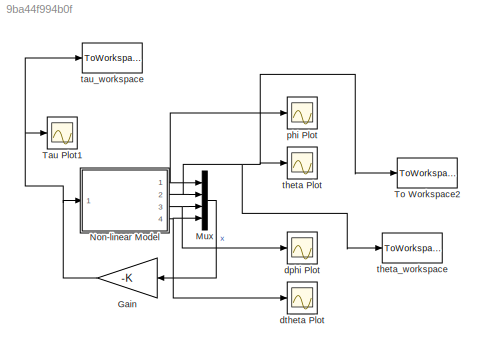
MODEL slx_9ba44f994b0f
KIND model
CONFIG AbsTol = auto
CONFIG EnableMultiTasking = off
CONFIG FixedStep = auto
CONFIG MaxStep = auto
CONFIG MinStep = auto
CONFIG RelTol = 1e-3
CONFIG SampleTimeConstraint = Unconstrained
CONFIG Solver = VariableStepAuto
CONFIG SolverName = VariableStepAuto
CONFIG StartTime = 0.0
CONFIG StopTime = 10
BLOCK [Gain] Gain
  Gain = -K
  Multiplication = Matrix(K*u)
  OutDataTypeStr = Inherit: Inherit via internal rule
  ParamDataTypeStr = Inherit: Inherit via internal rule
  SaturateOnIntegerOverflow = off
BLOCK [Mux] Mux
  DisplayOption = bar
  Ports = [4, 1]
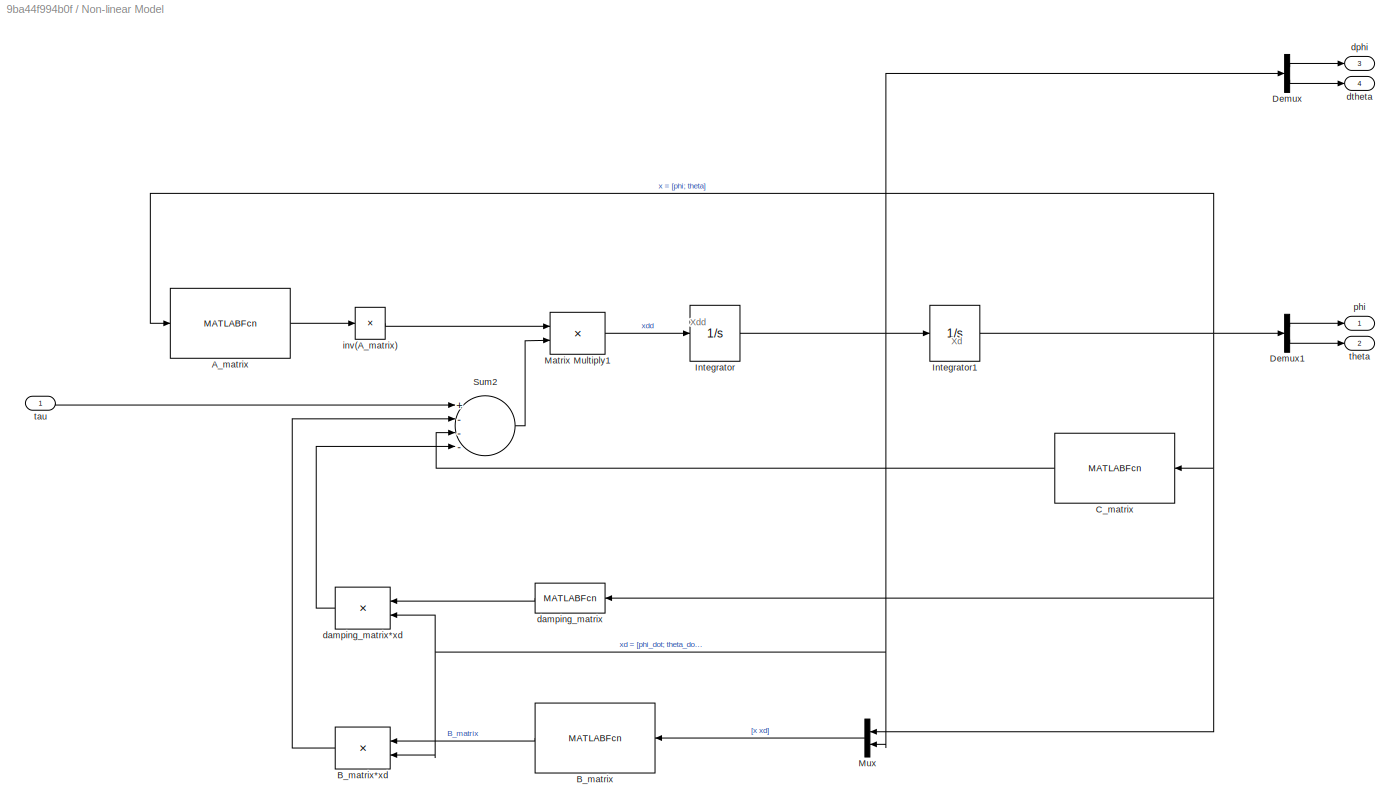
BLOCK [SubSystem] Non-linear Model
  Ports = [1, 4]
  RequestExecContextInheritance = off
BLOCK [MATLABFcn] Non-linear Model/A_matrix 
  Description = matrix A. 2x2
  MATLABFcn = A_matrix
  Output1D = off
  Ports = [1, 1]
BLOCK [MATLABFcn] Non-linear Model/B_matrix
  MATLABFcn = B_matrix
  Output1D = off
  Ports = [1, 1]
BLOCK [Product] Non-linear Model/B_matrix*xd
  InputSameDT = off
  Multiplication = Matrix(*)
  OutDataTypeStr = Inherit: Inherit via internal rule
  Ports = [2, 1]
  RndMeth = Floor
  SaturateOnIntegerOverflow = off
BLOCK [MATLABFcn] Non-linear Model/C_matrix
  MATLABFcn = C_matrix
  Output1D = off
  OutputDimensions = 2
  Ports = [1, 1]
BLOCK [Demux] Non-linear Model/Demux
  DisplayOption = bar
  Outputs = 2
  Ports = [1, 2]
BLOCK [Demux] Non-linear Model/Demux1
  DisplayOption = bar
  Outputs = 2
  Ports = [1, 2]
BLOCK [Integrator] Non-linear Model/Integrator
  InitialCondition = [0; 0.5]
  Ports = [1, 1]
BLOCK [Integrator] Non-linear Model/Integrator1
  InitialCondition = [0; 0.05]
  Ports = [1, 1]
BLOCK [Product] Non-linear Model/Matrix Multiply1
  InputSameDT = off
  Multiplication = Matrix(*)
  OutDataTypeStr = Inherit: Inherit via internal rule
  Ports = [2, 1]
  RndMeth = Floor
  SaturateOnIntegerOverflow = off
BLOCK [Mux] Non-linear Model/Mux
  DisplayOption = bar
  Inputs = 2
  Ports = [2, 1]
BLOCK [Sum] Non-linear Model/Sum2
  InputSameDT = off
  Inputs = +---
  OutDataTypeStr = Inherit: Inherit via internal rule
  Ports = [4, 1]
  SaturateOnIntegerOverflow = off
BLOCK [MATLABFcn] Non-linear Model/damping_matrix
  MATLABFcn = damping_matrix
  Output1D = off
  Ports = [1, 1]
BLOCK [Product] Non-linear Model/damping_matrix*xd 
  InputSameDT = off
  Multiplication = Matrix(*)
  OutDataTypeStr = Inherit: Inherit via internal rule
  Ports = [2, 1]
  RndMeth = Floor
  SaturateOnIntegerOverflow = off
BLOCK [Outport] Non-linear Model/dphi
  IconDisplay = Port number
  Port = 3
BLOCK [Outport] Non-linear Model/dtheta
  IconDisplay = Port number
  Port = 4
BLOCK [Product] Non-linear Model/inv(A_matrix)
  InputSameDT = off
  Inputs = /
  Multiplication = Matrix(*)
  OutDataTypeStr = Inherit: Inherit via internal rule
  Ports = [1, 1]
  RndMeth = Floor
  SaturateOnIntegerOverflow = off
BLOCK [Outport] Non-linear Model/phi
  IconDisplay = Port number
BLOCK [Inport] Non-linear Model/tau
  IconDisplay = Port number
BLOCK [Outport] Non-linear Model/theta
  IconDisplay = Port number
  Port = 2
BLOCK [Scope] Tau Plot1
  Floating = off
  NumInputPorts = 1
  Ports = [1]
  ScopeSpecificationString = Simulink.scopes.TimeScopeBlockCfg('CurrentConfiguration', extmgr.ConfigurationSet(extmgr.Configuration('Core','General UI',true),extmgr.Configuration('Core','Source UI',true),extmgr.Configuration('Sources','WiredSimulink',true,'DataLoggingVariableName','tau','DataLogging',true,'DataLoggingSaveFormat','Array'),extmgr.Configuration('Visuals','Time Domain',true,'SerializedDisplays',{struct('MinYLimRe...<+1503ch>
BLOCK [ToWorkspace] To Workspace2
  FixptAsFi = on
  MaxDataPoints = inf
  Ports = [1]
  SampleTime = -1
  SaveFormat = Timeseries
  VariableName = theta_fb
BLOCK [Scope] dphi Plot
  Floating = off
  NumInputPorts = 1
  Ports = [1]
  ScopeSpecificationString = Simulink.scopes.TimeScopeBlockCfg('CurrentConfiguration', extmgr.ConfigurationSet(extmgr.Configuration('Core','General UI',true),extmgr.Configuration('Core','Source UI',true),extmgr.Configuration('Sources','WiredSimulink',true,'DataLoggingVariableName','ScopeData2'),extmgr.Configuration('Visuals','Time Domain',true,'SerializedDisplays',{struct('MinYLimReal','-2.58294','MaxYLimReal','0.45593','YLab...<+1409ch>
BLOCK [Scope] dtheta Plot
  Floating = off
  NumInputPorts = 1
  Ports = [1]
  ScopeSpecificationString = Simulink.scopes.TimeScopeBlockCfg('CurrentConfiguration', extmgr.ConfigurationSet(extmgr.Configuration('Core','General UI',true),extmgr.Configuration('Core','Source UI',true),extmgr.Configuration('Sources','WiredSimulink',true,'DataLoggingVariableName','ScopeData3'),extmgr.Configuration('Visuals','Time Domain',true,'SerializedDisplays',{struct('MinYLimReal','-0.36947','MaxYLimReal','1.34185','YLab...<+1409ch>
BLOCK [Scope] phi Plot
  Floating = off
  NumInputPorts = 1
  Ports = [1]
  ScopeSpecificationString = Simulink.scopes.TimeScopeBlockCfg('CurrentConfiguration', extmgr.ConfigurationSet(extmgr.Configuration('Core','General UI',true),extmgr.Configuration('Core','Source UI',true),extmgr.Configuration('Sources','WiredSimulink',true,'DataLoggingVariableName','ScopeData1'),extmgr.Configuration('Visuals','Time Domain',true,'SerializedDisplays',{struct('MinYLimReal','-0.08612','MaxYLimReal','0.03013','YLab...<+1410ch>
BLOCK [ToWorkspace] tau_workspace 
  FixptAsFi = on
  MaxDataPoints = inf
  Ports = [1]
  SampleTime = -1
  SaveFormat = Timeseries
  VariableName = torque
BLOCK [Scope] theta Plot
  Floating = off
  NumInputPorts = 1
  Ports = [1]
  ScopeSpecificationString = Simulink.scopes.TimeScopeBlockCfg('CurrentConfiguration', extmgr.ConfigurationSet(extmgr.Configuration('Core','General UI',true),extmgr.Configuration('Core','Source UI',true),extmgr.Configuration('Sources','WiredSimulink',true),extmgr.Configuration('Visuals','Time Domain',true,'SerializedDisplays',{struct('MinYLimReal','-0.12763','MaxYLimReal','0.16111','YLabelReal','','MinYLimMag','0.00000','MaxY...<+1412ch>
BLOCK [ToWorkspace] theta_workspace 
  FixptAsFi = on
  MaxDataPoints = inf
  Ports = [1]
  SampleTime = -1
  SaveFormat = Timeseries
  VariableName = theta
ANNOTATION Non-linear Model: Xd
ANNOTATION Non-linear Model: Xdd
NET Gain:1 -> Non-linear Model:1, Tau Plot1:1, tau_workspace :1
LINE Mux:1 -> Gain:1
LINE Non-linear Model/A_matrix :1 -> Non-linear Model/inv(A_matrix):1
LINE Non-linear Model/B_matrix*xd:1 -> Non-linear Model/Sum2:2
LINE Non-linear Model/B_matrix:1 -> Non-linear Model/B_matrix*xd:1
LINE Non-linear Model/C_matrix:1 -> Non-linear Model/Sum2:3
LINE Non-linear Model/Demux1:1 -> Non-linear Model/phi:1
LINE Non-linear Model/Demux1:2 -> Non-linear Model/theta:1
LINE Non-linear Model/Demux:1 -> Non-linear Model/dphi:1
LINE Non-linear Model/Demux:2 -> Non-linear Model/dtheta:1
NET Non-linear Model/Integrator1:1 -> Non-linear Model/A_matrix :1, Non-linear Model/C_matrix:1, Non-linear Model/Demux1:1, Non-linear Model/Mux:1, Non-linear Model/damping_matrix:1
NET Non-linear Model/Integrator:1 -> Non-linear Model/B_matrix*xd:2, Non-linear Model/Demux:1, Non-linear Model/Integrator1:1, Non-linear Model/Mux:2, Non-linear Model/damping_matrix*xd :2
LINE Non-linear Model/Matrix Multiply1:1 -> Non-linear Model/Integrator:1
LINE Non-linear Model/Mux:1 -> Non-linear Model/B_matrix:1
LINE Non-linear Model/Sum2:1 -> Non-linear Model/Matrix Multiply1:2
LINE Non-linear Model/damping_matrix*xd :1 -> Non-linear Model/Sum2:4
LINE Non-linear Model/damping_matrix:1 -> Non-linear Model/damping_matrix*xd :1
LINE Non-linear Model/inv(A_matrix):1 -> Non-linear Model/Matrix Multiply1:1
LINE Non-linear Model/tau:1 -> Non-linear Model/Sum2:1
NET Non-linear Model:1 -> Mux:1, phi Plot:1
NET Non-linear Model:2 -> Mux:2, To Workspace2:1, theta Plot:1, theta_workspace :1
NET Non-linear Model:3 -> Mux:3, dphi Plot:1
NET Non-linear Model:4 -> Mux:4, dtheta Plot:1
note: NET lines group one-source signal fan-out (src -> all destinations, sorted); 1:1 wires keep LINE
